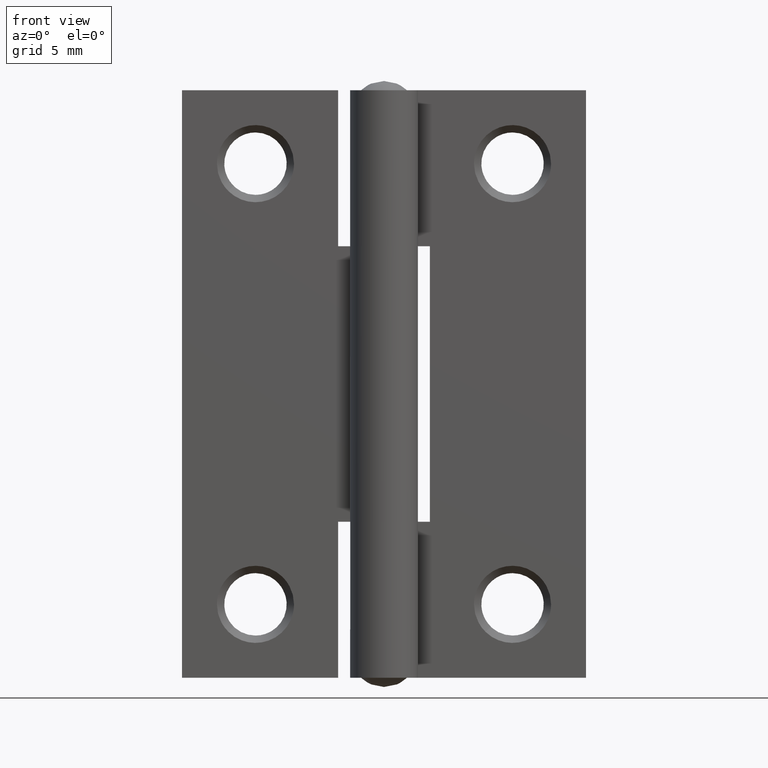
[diagram: clean part render]
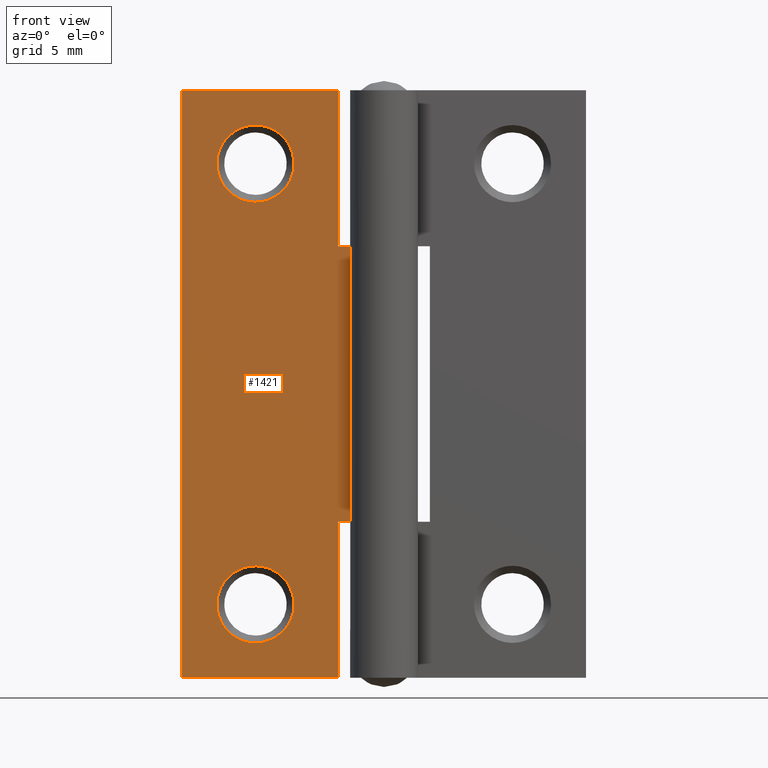
[diagram: same view with one face highlighted and labeled with its STEP entity id]
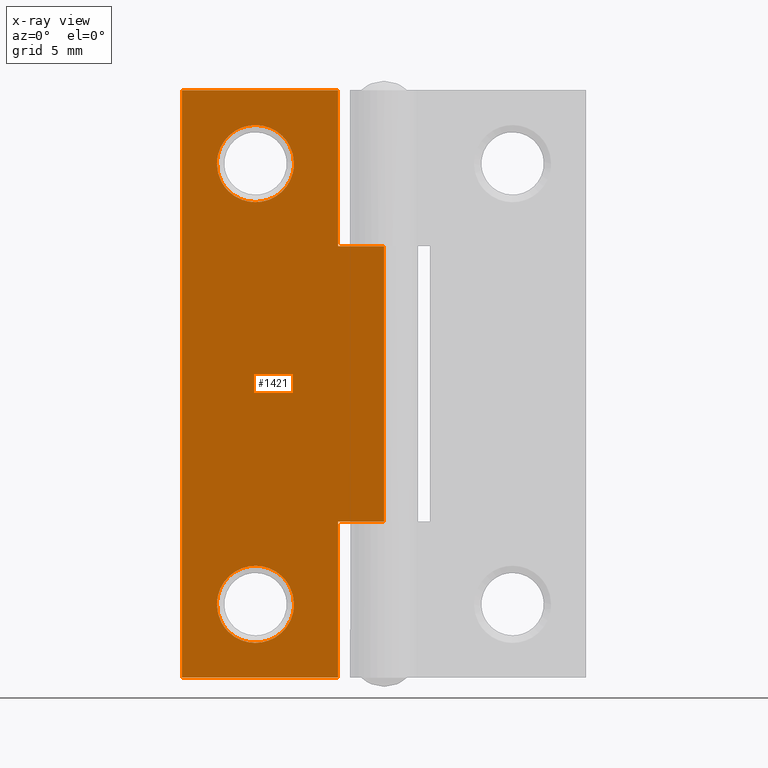
[diagram: x-ray of the same camera — body ghosted, the highlighted face saturated]
A machine part, front view. The second image highlights one B-rep face of the part: STEP entity #1421.
The next image is the same camera in x-ray: the body ghosted, the highlighted face saturated — about 0% of this face is hidden behind the body in this view.
In plain terms, the highlighted face is a freeform B-spline surface patch.
Its self-contained STEP definition (entity closure, byte-faithful):
#398=CARTESIAN_POINT('',(-5.528081433148695,1.049990999999876,29.497842215478599));
#399=VERTEX_POINT('',#398);
#405=CARTESIAN_POINT('',(-9.100012999999384,1.049990999999882,28.000007000000000));
#406=VERTEX_POINT('',#405);
#407=CARTESIAN_POINT('',(-5.528081433148700,1.049990999999882,29.497842215478606));
#408=CARTESIAN_POINT('',(-6.140861998560320,1.049990999999882,30.100019999999812));
#409=CARTESIAN_POINT('',(-6.999999999999581,1.049990999999882,30.100019999999809));
#410=CARTESIAN_POINT('',(-9.100012999999384,1.049990999999882,30.100019999999805));
#411=CARTESIAN_POINT('',(-9.100012999999384,1.049990999999882,28.000007000000000));
#419=(BOUNDED_CURVE()B_SPLINE_CURVE(2,(#407,#408,#409,#410,#411),.UNSPECIFIED.,.F.,.U.)B_SPLINE_CURVE_WITH_KNOTS((3,2,3),(0.126316757591001,0.250000000000000,0.500000000000000),.UNSPECIFIED.)CURVE()GEOMETRIC_REPRESENTATION_ITEM()RATIONAL_B_SPLINE_CURVE((0.853569641251499,0.855096068070175,1.0,0.707106781186548,1.0))REPRESENTATION_ITEM(''));
#420=EDGE_CURVE('',#399,#406,#419,.T.);
#422=CARTESIAN_POINT('',(-8.471918566850473,1.049990999999880,26.502171784521408));
#423=VERTEX_POINT('',#422);
#424=CARTESIAN_POINT('',(-9.100012999999384,1.049990999999882,28.000007000000000));
#425=CARTESIAN_POINT('',(-9.100012999999386,1.049990999999882,27.119398464955793));
#426=CARTESIAN_POINT('',(-8.471918566850471,1.049990999999882,26.502171784521405));
#434=(BOUNDED_CURVE()B_SPLINE_CURVE(2,(#424,#425,#426),.UNSPECIFIED.,.F.,.U.)B_SPLINE_CURVE_WITH_KNOTS((3,3),(0.500000000000000,0.626316757591000),.UNSPECIFIED.)CURVE()GEOMETRIC_REPRESENTATION_ITEM()RATIONAL_B_SPLINE_CURVE((1.0,0.852010713116373,0.853569641251499))REPRESENTATION_ITEM(''));
#435=EDGE_CURVE('',#406,#423,#434,.T.);
#541=CARTESIAN_POINT('',(-4.899986999999776,1.049990999999882,28.000007000000000));
#542=VERTEX_POINT('',#541);
#543=CARTESIAN_POINT('',(-8.471918566850471,1.049990999999882,26.502171784521405));
#544=CARTESIAN_POINT('',(-7.859138001438849,1.049990999999882,25.899994000000198));
#545=CARTESIAN_POINT('',(-6.999999999999581,1.049990999999882,25.899994000000198));
#546=CARTESIAN_POINT('',(-4.899986999999776,1.049990999999882,25.899994000000191));
#547=CARTESIAN_POINT('',(-4.899986999999776,1.049990999999882,28.000007000000000));
#555=(BOUNDED_CURVE()B_SPLINE_CURVE(2,(#543,#544,#545,#546,#547),.UNSPECIFIED.,.F.,.U.)B_SPLINE_CURVE_WITH_KNOTS((3,2,3),(0.626316757591000,0.750000000000000,1.0),.UNSPECIFIED.)CURVE()GEOMETRIC_REPRESENTATION_ITEM()RATIONAL_B_SPLINE_CURVE((0.853569641251499,0.855096068070174,1.0,0.707106781186548,1.0))REPRESENTATION_ITEM(''));
#556=EDGE_CURVE('',#423,#542,#555,.T.);
#558=CARTESIAN_POINT('',(-4.899986999999776,1.049990999999882,28.000007000000000));
#559=CARTESIAN_POINT('',(-4.899986999999775,1.049990999999882,28.880615535044218));
#560=CARTESIAN_POINT('',(-5.528081433148699,1.049990999999882,29.497842215478599));
#568=(BOUNDED_CURVE()B_SPLINE_CURVE(2,(#558,#559,#560),.UNSPECIFIED.,.F.,.U.)B_SPLINE_CURVE_WITH_KNOTS((3,3),(0.0,0.126316757591001),.UNSPECIFIED.)CURVE()GEOMETRIC_REPRESENTATION_ITEM()RATIONAL_B_SPLINE_CURVE((1.0,0.852010713116372,0.853569641251499))REPRESENTATION_ITEM(''));
#569=EDGE_CURVE('',#542,#399,#568,.T.);
#734=CARTESIAN_POINT('',(-5.528081433148804,1.049990999999875,5.497835215478601));
#735=VERTEX_POINT('',#734);
#741=CARTESIAN_POINT('',(-9.100012999999496,1.049990999999882,4.0));
#742=VERTEX_POINT('',#741);
#743=CARTESIAN_POINT('',(-5.528081433148807,1.049990999999882,5.497835215478600));
#744=CARTESIAN_POINT('',(-6.140861998560427,1.049990999999882,6.100012999999805));
#745=CARTESIAN_POINT('',(-6.999999999999691,1.049990999999882,6.100012999999805));
#746=CARTESIAN_POINT('',(-9.100012999999496,1.049990999999882,6.100012999999805));
#747=CARTESIAN_POINT('',(-9.100012999999496,1.049990999999882,4.0));
#755=(BOUNDED_CURVE()B_SPLINE_CURVE(2,(#743,#744,#745,#746,#747),.UNSPECIFIED.,.F.,.U.)B_SPLINE_CURVE_WITH_KNOTS((3,2,3),(0.126316757591001,0.250000000000000,0.500000000000000),.UNSPECIFIED.)CURVE()GEOMETRIC_REPRESENTATION_ITEM()RATIONAL_B_SPLINE_CURVE((0.853569641251499,0.855096068070175,1.0,0.707106781186548,1.0))REPRESENTATION_ITEM(''));
#756=EDGE_CURVE('',#735,#742,#755,.T.);
#758=CARTESIAN_POINT('',(-8.471918566850587,1.049990999999878,2.502164784521406));
#759=VERTEX_POINT('',#758);
#760=CARTESIAN_POINT('',(-9.100012999999496,1.049990999999882,4.0));
#761=CARTESIAN_POINT('',(-9.100012999999496,1.049990999999882,3.119391464955793));
#762=CARTESIAN_POINT('',(-8.471918566850583,1.049990999999882,2.502164784521409));
#770=(BOUNDED_CURVE()B_SPLINE_CURVE(2,(#760,#761,#762),.UNSPECIFIED.,.F.,.U.)B_SPLINE_CURVE_WITH_KNOTS((3,3),(0.500000000000000,0.626316757591000),.UNSPECIFIED.)CURVE()GEOMETRIC_REPRESENTATION_ITEM()RATIONAL_B_SPLINE_CURVE((1.0,0.852010713116374,0.853569641251499))REPRESENTATION_ITEM(''));
#771=EDGE_CURVE('',#742,#759,#770,.T.);
#877=CARTESIAN_POINT('',(-4.899986999999885,1.049990999999882,4.0));
#878=VERTEX_POINT('',#877);
#879=CARTESIAN_POINT('',(-8.471918566850583,1.049990999999882,2.502164784521409));
#880=CARTESIAN_POINT('',(-7.859138001438963,1.049990999999882,1.899987000000195));
#881=CARTESIAN_POINT('',(-6.999999999999691,1.049990999999882,1.899987000000195));
#882=CARTESIAN_POINT('',(-4.899986999999884,1.049990999999882,1.899987000000195));
#883=CARTESIAN_POINT('',(-4.899986999999885,1.049990999999882,4.0));
#891=(BOUNDED_CURVE()B_SPLINE_CURVE(2,(#879,#880,#881,#882,#883),.UNSPECIFIED.,.F.,.U.)B_SPLINE_CURVE_WITH_KNOTS((3,2,3),(0.626316757591000,0.750000000000000,1.0),.UNSPECIFIED.)CURVE()GEOMETRIC_REPRESENTATION_ITEM()RATIONAL_B_SPLINE_CURVE((0.853569641251499,0.855096068070174,1.0,0.707106781186548,1.0))REPRESENTATION_ITEM(''));
#892=EDGE_CURVE('',#759,#878,#891,.T.);
#894=CARTESIAN_POINT('',(-4.899986999999885,1.049990999999882,4.0));
#895=CARTESIAN_POINT('',(-4.899986999999885,1.049990999999882,4.880608535044214));
#896=CARTESIAN_POINT('',(-5.528081433148807,1.049990999999882,5.497835215478600));
#904=(BOUNDED_CURVE()B_SPLINE_CURVE(2,(#894,#895,#896),.UNSPECIFIED.,.F.,.U.)B_SPLINE_CURVE_WITH_KNOTS((3,3),(0.0,0.126316757591001),.UNSPECIFIED.)CURVE()GEOMETRIC_REPRESENTATION_ITEM()RATIONAL_B_SPLINE_CURVE((1.0,0.852010713116373,0.853569641251499))REPRESENTATION_ITEM(''));
#905=EDGE_CURVE('',#878,#735,#904,.T.);
#1056=CARTESIAN_POINT('',(-2.499999999999901,1.049990999999806,23.500007000000000));
#1057=VERTEX_POINT('',#1056);
#1063=CARTESIAN_POINT('',(0.004347403741931,1.049990999999846,23.500007000000000));
#1064=VERTEX_POINT('',#1063);
#1065=CARTESIAN_POINT('',(0.004347403741931,1.049990999999846,23.500007000000000));
#1066=CARTESIAN_POINT('',(-2.499999999999901,1.049990999999806,23.500007000000000));
#1067=QUASI_UNIFORM_CURVE('',1,(#1065,#1066),.UNSPECIFIED.,.F.,.U.);
#1068=EDGE_CURVE('',#1064,#1057,#1067,.T.);
#1159=CARTESIAN_POINT('',(-2.499999999999901,1.049990999999916,32.000006999999997));
#1160=VERTEX_POINT('',#1159);
#1166=CARTESIAN_POINT('',(-2.499999999999901,1.049990999999806,23.500007000000000));
#1167=CARTESIAN_POINT('',(-2.499999999999901,1.049990999999916,32.000006999999997));
#1168=QUASI_UNIFORM_CURVE('',1,(#1166,#1167),.UNSPECIFIED.,.F.,.U.);
#1169=EDGE_CURVE('',#1057,#1160,#1168,.T.);
#1188=CARTESIAN_POINT('',(0.004347403741931,1.049990999999846,8.500000000000000));
#1189=VERTEX_POINT('',#1188);
#1221=CARTESIAN_POINT('',(-2.500000000000070,1.049990999999806,8.500000000000000));
#1222=VERTEX_POINT('',#1221);
#1223=CARTESIAN_POINT('',(-2.500000000000070,1.049990999999806,8.500000000000000));
#1224=CARTESIAN_POINT('',(0.004347403741931,1.049990999999846,8.500000000000000));
#1225=QUASI_UNIFORM_CURVE('',1,(#1223,#1224),.UNSPECIFIED.,.F.,.U.);
#1226=EDGE_CURVE('',#1222,#1189,#1225,.T.);
#1291=CARTESIAN_POINT('',(-2.500000000000000,1.049990999999860,1.421085E-014));
#1292=VERTEX_POINT('',#1291);
#1306=CARTESIAN_POINT('',(-2.500000000000000,1.049990999999860,1.421085E-014));
#1307=CARTESIAN_POINT('',(-2.500000000000070,1.049990999999806,8.500000000000000));
#1308=QUASI_UNIFORM_CURVE('',1,(#1306,#1307),.UNSPECIFIED.,.F.,.U.);
#1309=EDGE_CURVE('',#1292,#1222,#1308,.T.);
#1319=CARTESIAN_POINT('',(-10.999999999999700,1.049990999999902,0.0));
#1320=VERTEX_POINT('',#1319);
#1328=CARTESIAN_POINT('',(-10.999999999999700,1.049990999999902,32.000006999999947));
#1329=VERTEX_POINT('',#1328);
#1330=CARTESIAN_POINT('',(-10.999999999999700,1.049990999999902,32.000006999999947));
#1331=CARTESIAN_POINT('',(-10.999999999999700,1.049990999999902,0.0));
#1332=QUASI_UNIFORM_CURVE('',1,(#1330,#1331),.UNSPECIFIED.,.F.,.U.);
#1333=EDGE_CURVE('',#1329,#1320,#1332,.T.);
#1361=CARTESIAN_POINT('',(-2.500000000000000,1.049990999999860,1.421085E-014));
#1362=CARTESIAN_POINT('',(-10.999999999999700,1.049990999999902,0.0));
#1363=QUASI_UNIFORM_CURVE('',1,(#1361,#1362),.UNSPECIFIED.,.F.,.U.);
#1364=EDGE_CURVE('',#1292,#1320,#1363,.T.);
#1382=CARTESIAN_POINT('',(-2.499999999999901,1.049990999999916,32.000006999999997));
#1383=CARTESIAN_POINT('',(-10.999999999999700,1.049990999999902,32.000006999999947));
#1384=QUASI_UNIFORM_CURVE('',1,(#1382,#1383),.UNSPECIFIED.,.F.,.U.);
#1385=EDGE_CURVE('',#1160,#1329,#1384,.T.);
#1390=CARTESIAN_POINT('',(-11.549667131488031,1.049990999999846,-1.598400287627778));
#1391=CARTESIAN_POINT('',(0.554014830389863,1.049990999999846,-1.598400287627778));
#1392=CARTESIAN_POINT('',(-11.549667131488031,1.049990999999846,33.598408145934847));
#1393=CARTESIAN_POINT('',(0.554014830389863,1.049990999999846,33.598408145934847));
#1394=B_SPLINE_SURFACE_WITH_KNOTS('',1,1,((#1390,#1392),(#1391,#1393)),.UNSPECIFIED.,.F.,.F.,.U.,(2,2),(2,2),(0.0,12.103681961877900),(0.0,35.196808433562623),.UNSPECIFIED.);
#1395=ORIENTED_EDGE('',*,*,#1068,.T.);
#1396=ORIENTED_EDGE('',*,*,#1169,.T.);
#1397=ORIENTED_EDGE('',*,*,#1385,.T.);
#1398=ORIENTED_EDGE('',*,*,#1333,.T.);
#1399=ORIENTED_EDGE('',*,*,#1364,.F.);
#1400=ORIENTED_EDGE('',*,*,#1309,.T.);
#1401=ORIENTED_EDGE('',*,*,#1226,.T.);
#1402=CARTESIAN_POINT('',(0.004347403741931,1.049990999999846,23.500007000000000));
#1403=CARTESIAN_POINT('',(0.004347403741931,1.049990999999846,8.500000000000000));
#1404=QUASI_UNIFORM_CURVE('',1,(#1402,#1403),.UNSPECIFIED.,.F.,.U.);
#1405=EDGE_CURVE('',#1064,#1189,#1404,.T.);
#1406=ORIENTED_EDGE('',*,*,#1405,.F.);
#1407=EDGE_LOOP('',(#1395,#1396,#1397,#1398,#1399,#1400,#1401,#1406));
#1408=FACE_OUTER_BOUND('',#1407,.T.);
#1409=ORIENTED_EDGE('',*,*,#771,.F.);
#1410=ORIENTED_EDGE('',*,*,#756,.F.);
#1411=ORIENTED_EDGE('',*,*,#905,.F.);
#1412=ORIENTED_EDGE('',*,*,#892,.F.);
#1413=EDGE_LOOP('',(#1409,#1410,#1411,#1412));
#1414=FACE_BOUND('',#1413,.T.);
#1415=ORIENTED_EDGE('',*,*,#435,.F.);
#1416=ORIENTED_EDGE('',*,*,#420,.F.);
#1417=ORIENTED_EDGE('',*,*,#569,.F.);
#1418=ORIENTED_EDGE('',*,*,#556,.F.);
#1419=EDGE_LOOP('',(#1415,#1416,#1417,#1418));
#1420=FACE_BOUND('',#1419,.T.);
#1421=ADVANCED_FACE('',(#1408,#1414,#1420),#1394,.T.);